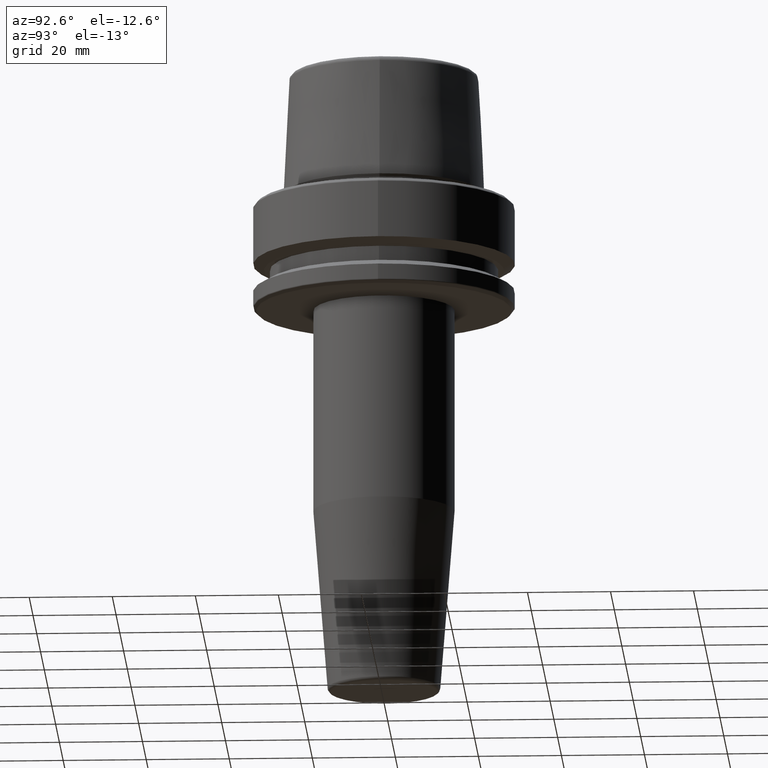
[diagram: clean part render]
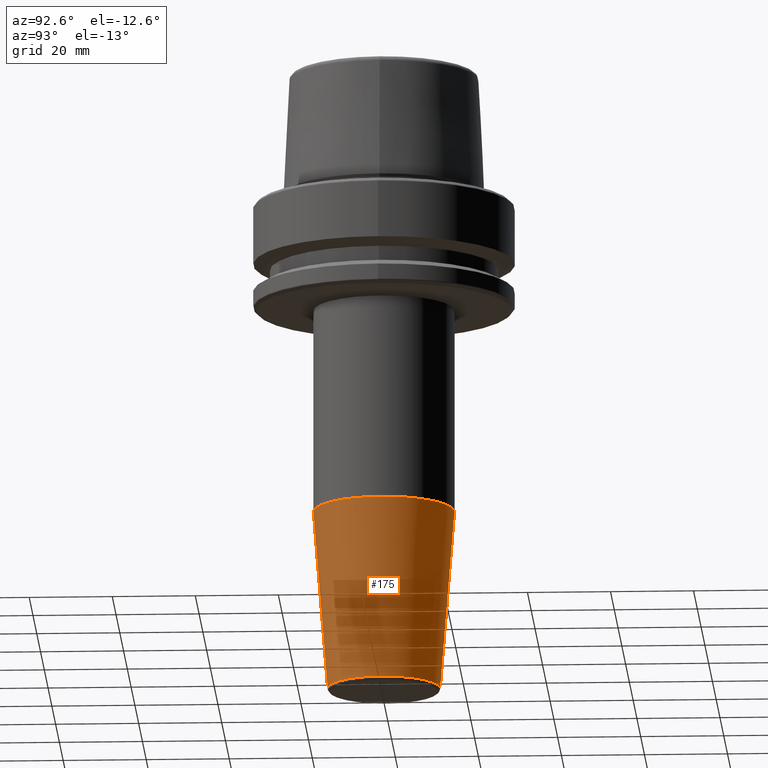
[diagram: same view with one face highlighted and labeled with its STEP entity id]
A machine part, auxiliary view. The second image highlights one B-rep face of the part: STEP entity #175.
In plain terms, the highlighted conical surface has half-angle 4.5 deg.
Its self-contained STEP definition (entity closure, byte-faithful):
#1 = CARTESIAN_POINT ( 'NONE',  ( 2.081899558550499900E-015, 16.99999999999999600, -75.52828342338445100 ) ) ;
#24 = EDGE_CURVE ( 'NONE', #356, #1040, #169, .T. ) ;
#36 = LINE ( 'NONE', #1106, #614 ) ;
#122 = CARTESIAN_POINT ( 'NONE',  ( 0.0000000000000000000, 3.637922457483538600E-015, -119.0784590957278200 ) ) ;
#126 = ORIENTED_EDGE ( 'NONE', *, *, #24, .F. ) ;
#142 = DIRECTION ( 'NONE',  ( 0.0000000000000000000, -3.908447231321338600E-017, 1.000000000000000000 ) ) ;
#169 = CIRCLE ( 'NONE', #465, 13.57252684207491600 ) ;
#175 = ADVANCED_FACE ( 'NONE', ( #290 ), #607, .T. ) ;
#214 = DIRECTION ( 'NONE',  ( 0.0000000000000000000, 1.000000000000000000, 0.0000000000000000000 ) ) ;
#290 = FACE_OUTER_BOUND ( 'NONE', #830, .T. ) ;
#344 = ORIENTED_EDGE ( 'NONE', *, *, #655, .F. ) ;
#347 = CARTESIAN_POINT ( 'NONE',  ( 2.081899558550499900E-015, 16.99999999999999600, -75.52828342338445100 ) ) ;
#356 = VERTEX_POINT ( 'NONE', #403 ) ;
#403 = CARTESIAN_POINT ( 'NONE',  ( 0.0000000000000000000, 13.57252684207491800, -119.0784590957278200 ) ) ;
#424 = DIRECTION ( 'NONE',  ( 0.0000000000000000000, -0.07845909572783769900, 0.9969173337331285200 ) ) ;
#462 = CARTESIAN_POINT ( 'NONE',  ( 0.0000000000000000000, 1.935786822182254700E-015, -75.52828342338445100 ) ) ;
#465 = AXIS2_PLACEMENT_3D ( 'NONE', #122, #516, #214 ) ;
#516 = DIRECTION ( 'NONE',  ( -0.0000000000000000000, 3.908447231321338600E-017, -1.000000000000000000 ) ) ;
#522 = VECTOR ( 'NONE', #946, 999.9999999999998900 ) ;
#555 = DIRECTION ( 'NONE',  ( 0.0000000000000000000, -1.000000000000000000, 0.0000000000000000000 ) ) ;
#559 = DIRECTION ( 'NONE',  ( 0.0000000000000000000, 1.000000000000000000, 0.0000000000000000000 ) ) ;
#582 = ORIENTED_EDGE ( 'NONE', *, *, #845, .T. ) ;
#607 = CONICAL_SURFACE ( 'NONE', #1093, 16.99999999999999300, 0.07853981633973754200 ) ;
#614 = VECTOR ( 'NONE', #424, 1000.000000000000000 ) ;
#655 = EDGE_CURVE ( 'NONE', #1040, #1209, #36, .T. ) ;
#759 = ORIENTED_EDGE ( 'NONE', *, *, #795, .T. ) ;
#782 = CARTESIAN_POINT ( 'NONE',  ( 1.662155155348858000E-015, -13.57252684207491100, -119.0784590957278200 ) ) ;
#795 = EDGE_CURVE ( 'NONE', #1193, #1209, #1236, .T. ) ;
#830 = EDGE_LOOP ( 'NONE', ( #126, #582, #759, #344 ) ) ;
#845 = EDGE_CURVE ( 'NONE', #356, #1193, #1036, .T. ) ;
#946 = DIRECTION ( 'NONE',  ( 9.608468044709218300E-018, 0.07845909572783763000, 0.9969173337331286300 ) ) ;
#965 = CARTESIAN_POINT ( 'NONE',  ( 0.0000000000000000000, -16.99999999999998900, -75.52828342338445100 ) ) ;
#1036 = LINE ( 'NONE', #347, #522 ) ;
#1040 = VERTEX_POINT ( 'NONE', #782 ) ;
#1093 = AXIS2_PLACEMENT_3D ( 'NONE', #1117, #142, #555 ) ;
#1106 = CARTESIAN_POINT ( 'NONE',  ( 0.0000000000000000000, -16.99999999999998900, -75.52828342338445100 ) ) ;
#1117 = CARTESIAN_POINT ( 'NONE',  ( 0.0000000000000000000, 1.935786822182254700E-015, -75.52828342338445100 ) ) ;
#1141 = DIRECTION ( 'NONE',  ( -0.0000000000000000000, 3.908447231321338600E-017, -1.000000000000000000 ) ) ;
#1151 = AXIS2_PLACEMENT_3D ( 'NONE', #462, #1141, #559 ) ;
#1193 = VERTEX_POINT ( 'NONE', #1 ) ;
#1209 = VERTEX_POINT ( 'NONE', #965 ) ;
#1236 = CIRCLE ( 'NONE', #1151, 16.99999999999999600 ) ;